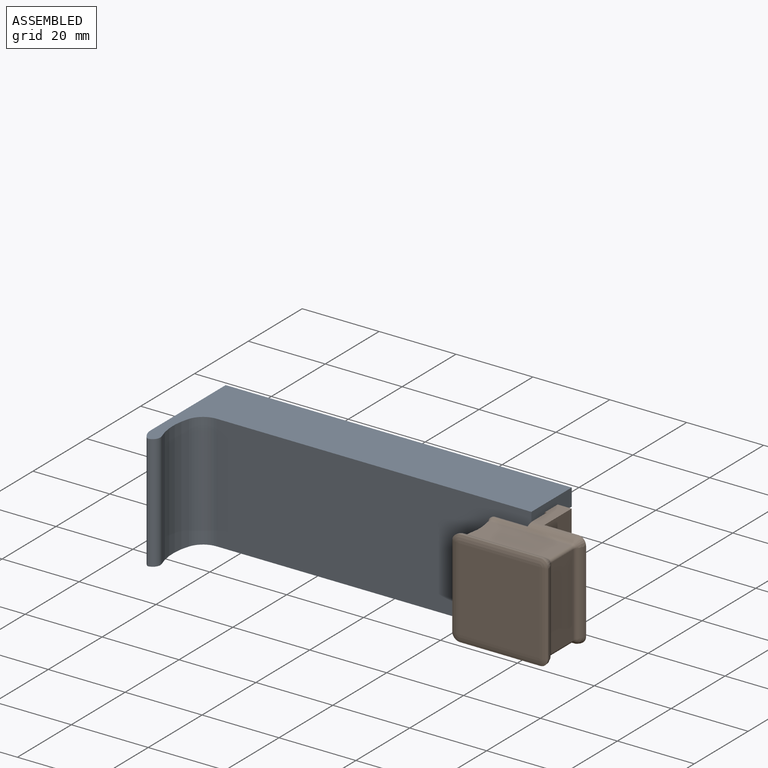
[diagram: assembled view]
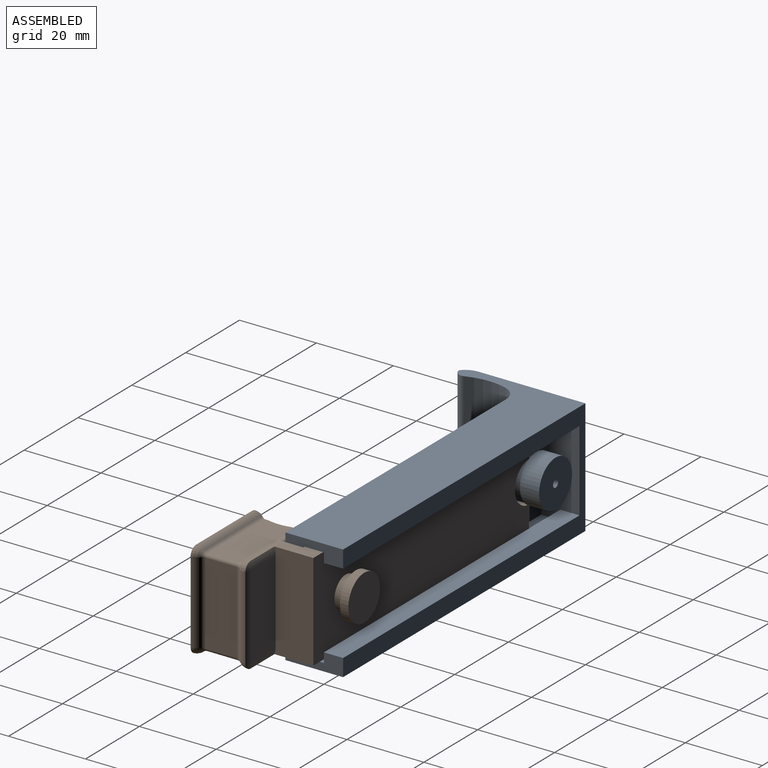
[diagram: assembled view, second angle]
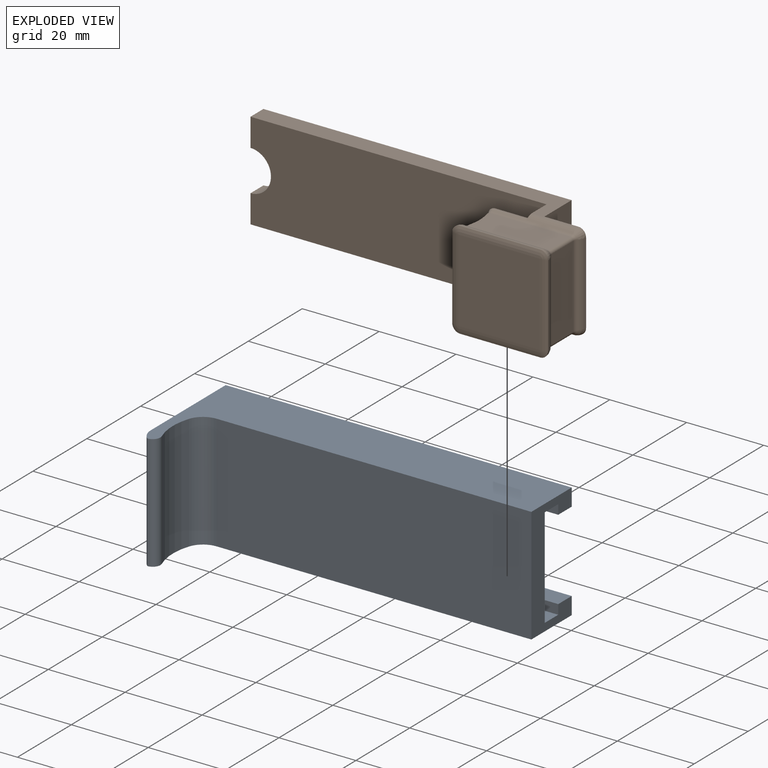
[diagram: exploded view]
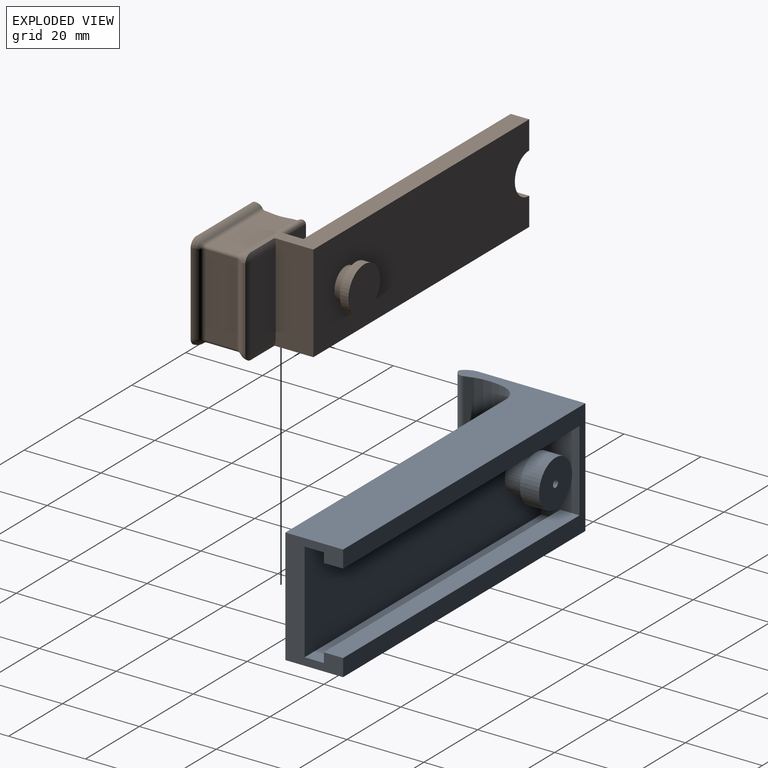
[diagram: exploded view, second angle]
ASSEMBLY  parts=2 mates=2
PART A: 24 faces, bbox 90x31.6x30 mm
  f0: plane 81.88x30mm, normal (0,-1,0), area 2456.5mm2, adj f1,f3,f4,f7
  f1: plane 90x31.6mm, normal (0,0,1), area 1403.4mm2, adj f0,f2,f4,f5,f6,f7,f22,f23
  f2: plane 30x27.79mm, normal (-1,0,0), area 833.8mm2, adj f1,f3,f5,f23
  f3: plane 90x31.6mm, normal (0,0,-1), area 1403.4mm2, adj f0,f2,f4,f5,f6,f7,f22,f23
  f4: plane 30x15mm, normal (1,0,0), area 215mm2, adj f0,f1,f3,f5,f8,f9,f10,f16
  f5: plane 90x30mm, normal (0,1,0), area 856.2mm2, adj f1,f2,f3,f4,f11,f17,f18
  f6: cylinder r=15.45mm len=30mm, axis (0,0,1), area 320.1mm2, adj f1,f3,f7,f22
  f7: cylinder r=5mm len=30mm, axis (0,0,1), area 187.4mm2, adj f0,f1,f3,f6
  f8: plane 87.8x5mm, normal (0,0,-1), area 439mm2, adj f4,f9,f11,f16
  f9: plane 87.8x26mm, normal (0,1,0), area 2217.9mm2, adj f4,f8,f10,f11,f12
  f10: plane 87.8x5mm, normal (0,0,1), area 439mm2, adj f4,f9,f11,f19
  f11: plane 26x10mm, normal (1,0,0), area 235mm2, adj f5,f8,f9,f10,f16,f17,f18,f19
  f12: cylinder r=4.55mm len=9.09mm, axis (0,-1,0), area 142.8mm2, adj f9,f14
  f13: plane 12.24x12.24mm, normal (0,1,0), area 114.8mm2, adj f15,f20
  f14: plane 12.24x12.24mm, normal (0,-1,0), area 52.8mm2, adj f12,f15
  f15: cylinder r=6.12mm len=12.24mm, axis (0,-1,0), area 192.3mm2, adj f13,f14
  f16: plane 87.8x2.5mm, normal (0,-1,0), area 219.5mm2, adj f4,f8,f11,f17
  f17: plane 87.8x5mm, normal (0,0,-1), area 439mm2, adj f4,f5,f11,f16
  f18: plane 87.8x5mm, normal (0,0,1), area 439mm2, adj f4,f5,f11,f19
  f19: plane 87.8x2.5mm, normal (0,-1,0), area 219.5mm2, adj f4,f10,f11,f18
  f20: cylinder r=0.96mm len=6.1mm, axis (0,1,0), area 36.6mm2, adj f13,f21
  f21: plane 1.91x1.91mm, normal (0,1,0), area 2.9mm2, adj f20
  f22: cylinder r=2mm len=30mm, axis (0,0,1), area 116.4mm2, adj f1,f3,f6,f23
  f23: cylinder r=5mm len=30mm, axis (0,0,-1), area 129.8mm2, adj f1,f2,f3,f22
PART B: 72 faces, bbox 91x29.5x25.4 mm
  f0: plane 20.85x8.02mm, normal (0,0,1), area 166.6mm2, adj f1,f13,f14,f20,f27,f70
  f1: cylinder r=0.8mm len=1.79mm, axis (0,1,0), area 0.5mm2, adj f0,f28,f70
  f2: cylinder r=0.8mm len=1.79mm, axis (0,1,0), area 0.5mm2, adj f16,f31,f70
  f3: plane 80.16x10.12mm, normal (0,0,1), area 401.6mm2, adj f5,f7,f8,f10,f11,f42
  f4: plane 80.16x10.12mm, normal (0,0,-1), area 401.6mm2, adj f6,f7,f8,f10,f11,f43
  f5: plane 7.32x4.8mm, normal (-1,0,0), area 35.1mm2, adj f3,f7,f8,f9
  f6: plane 7.32x4.8mm, normal (-1,0,0), area 35.1mm2, adj f4,f7,f8,f9
  f7: plane 77x25.3mm, normal (0,-1,0), area 1903.5mm2, adj f3,f4,f5,f6,f9,f10
  f8: plane 80.16x25.3mm, normal (0,1,0), area 1928mm2, adj f3,f4,f5,f6,f9,f11,f47
  f9: cylinder r=5.33mm len=10.66mm, axis (0,-1,0), area 80.4mm2, adj f5,f6,f7,f8
  f10: plane 25.3x7.51mm, normal (-1,0,0), area 151.5mm2, adj f3,f4,f7,f20,f26,f42,f43,f59
  f11: plane 25.3x10.12mm, normal (1,0,0), area 248.3mm2, adj f3,f4,f8,f12,f65,f69
  f12: plane 21.79x9.09mm, normal (0,1,0), area 197.9mm2, adj f11,f65,f66,f67,f68,f69
  f13: cylinder r=0.8mm len=8.02mm, axis (0,1,0), area 10.1mm2, adj f0,f18,f22,f29
  f14: cylinder r=0.8mm len=1.93mm, axis (0,1,0), area 0.6mm2, adj f0,f21,f70
  f15: cylinder r=0.8mm len=1.93mm, axis (0,1,0), area 0.6mm2, adj f16,f24,f70
  f16: plane 20.85x8.02mm, normal (0,0,-1), area 166.6mm2, adj f2,f15,f17,f26,f33,f70
  f17: cylinder r=0.8mm len=8.02mm, axis (0,1,0), area 10.1mm2, adj f16,f18,f25,f32
  f18: plane 21.3x8.02mm, normal (1,0,0), area 170.9mm2, adj f13,f17,f23,f30
  f19: plane 21.48x21.02mm, normal (0,-1,0), area 451.4mm2, adj f51,f52,f53,f54,f55,f56,f57,f58
  f20: cylinder r=1.52mm len=20.85mm, axis (-1,0,0), area 21.9mm2, adj f0,f10,f21,f22,f42,f60
  f21: torus R=2.32mm, axis (0,1,0), area 0.8mm2, adj f14,f20,f61,f70
  f22: torus R=2.32mm, axis (0,1,0), area 1.7mm2, adj f13,f20,f23,f44
  f23: cylinder r=1.52mm len=21.3mm, axis (0,0,1), area 24.1mm2, adj f18,f22,f25,f46
  f24: torus R=2.32mm, axis (0,1,0), area 0.8mm2, adj f15,f26,f64,f70
  f25: torus R=2.32mm, axis (0,1,0), area 1.7mm2, adj f17,f23,f26,f45
  f26: cylinder r=1.52mm len=20.85mm, axis (-1,0,0), area 21.9mm2, adj f10,f16,f24,f25,f43,f62
  f27: cylinder r=1.52mm len=20.85mm, axis (1,0,0), area 23.9mm2, adj f0,f28,f29,f38
  f28: torus R=2.32mm, axis (0,-1,0), area 0.9mm2, adj f1,f27,f36,f70
  f29: torus R=2.32mm, axis (0,-1,0), area 1.7mm2, adj f13,f27,f30,f40
  f30: cylinder r=1.52mm len=21.3mm, axis (0,0,-1), area 24.5mm2, adj f18,f29,f32,f41
  f31: torus R=2.32mm, axis (0,-1,0), area 0.9mm2, adj f2,f33,f35,f70
  f32: torus R=2.32mm, axis (0,-1,0), area 1.7mm2, adj f17,f30,f33,f39
  f33: cylinder r=1.52mm len=20.85mm, axis (-1,0,0), area 23.9mm2, adj f16,f31,f32,f37
  f34: cylinder r=3mm len=21.3mm, axis (0,0,1), area 6mm2, adj f35,f36,f52,f70
  f35: revolved ~2.06x2.03mm, area 4.3mm2, adj f31,f34,f37,f54,f70
  f36: revolved ~2.06x2.03mm, area 4.7mm2, adj f28,f34,f38,f51,f70,f71
  f37: cylinder r=3mm len=20.85mm, axis (-1,0,0), area 47.2mm2, adj f33,f35,f39,f56
  f38: cylinder r=3mm len=20.85mm, axis (1,0,0), area 47.2mm2, adj f27,f36,f40,f53
  f39: revolved ~2.06x2.03mm, area 6.2mm2, adj f32,f37,f41,f58
  f40: revolved ~2.06x2.03mm, area 6.2mm2, adj f29,f38,f41,f55
  f41: cylinder r=3mm len=21.3mm, axis (0,0,-1), area 48.3mm2, adj f30,f39,f40,f57
  f42: cylinder r=3mm len=12mm, axis (-1,0,0), area 26.9mm2, adj f3,f10,f20,f44,f69
  f43: cylinder r=3mm len=12mm, axis (-1,0,0), area 26.9mm2, adj f4,f10,f26,f45,f65
  f44: revolved ~2.04x2mm, area 6.1mm2, adj f22,f42,f46,f68
  f45: revolved ~2.04x2mm, area 6.1mm2, adj f25,f43,f46,f66
  f46: cylinder r=3mm len=21.3mm, axis (0,0,1), area 47.7mm2, adj f23,f44,f45,f67
  f47: cylinder r=4.2mm len=8.4mm, axis (0,-1,0), area 68.6mm2, adj f8,f50
  f48: cylinder r=5.88mm len=11.75mm, axis (0,-1,0), area 81.2mm2, adj f49,f50
  f49: plane 11.75x11.75mm, normal (0,1,0), area 108.5mm2, adj f48
  f50: plane 11.75x11.75mm, normal (0,-1,0), area 53mm2, adj f47,f48
  f51: torus R=0.09mm, axis (0,1,0), area 3.4mm2, adj f19,f36,f52,f53
  f52: cylinder r=5mm len=21.3mm, axis (0,0,1), area 42.5mm2, adj f19,f34,f51,f54
  f53: cylinder r=5mm len=20.85mm, axis (1,0,0), area 41.6mm2, adj f19,f38,f51,f55
  f54: torus R=0.09mm, axis (0,1,0), area 3.4mm2, adj f19,f35,f52,f56
  f55: torus R=0.09mm, axis (0,1,0), area 3.4mm2, adj f19,f40,f53,f57
  f56: cylinder r=5mm len=20.85mm, axis (-1,0,0), area 41.6mm2, adj f19,f37,f54,f58
  f57: cylinder r=5mm len=21.3mm, axis (0,0,-1), area 42.5mm2, adj f19,f41,f55,f58
  f58: torus R=0.09mm, axis (0,1,0), area 3.4mm2, adj f19,f39,f56,f57
  f59: plane 21.83x9.11mm, normal (0,1,0), area 198.8mm2, adj f10,f60,f61,f62,f63,f64
  f60: cylinder r=1mm len=8.84mm, axis (-1,0,0), area 19.4mm2, adj f10,f20,f59,f61
  f61: torus R=0.27mm, axis (0,1,0), area 3mm2, adj f21,f59,f60,f63,f70
  f62: cylinder r=1mm len=8.84mm, axis (-1,0,0), area 19.4mm2, adj f10,f26,f59,f64
  f63: cylinder r=1mm len=21.3mm, axis (0,0,1), area 32.3mm2, adj f59,f61,f64,f70
  f64: torus R=0.27mm, axis (0,1,0), area 3mm2, adj f24,f59,f62,f63,f70
  f65: cylinder r=5mm len=8.84mm, axis (-1,0,0), area 15.9mm2, adj f11,f12,f43,f66
  f66: torus R=0.24mm, axis (0,1,0), area 3.2mm2, adj f12,f45,f65,f67
  f67: cylinder r=5mm len=21.3mm, axis (0,0,-1), area 38.2mm2, adj f12,f46,f66,f68
  f68: torus R=0.24mm, axis (0,1,0), area 3.2mm2, adj f12,f44,f67,f69
  f69: cylinder r=5mm len=8.84mm, axis (1,0,0), area 15.9mm2, adj f11,f12,f42,f68
  f70: cylinder r=11.4mm len=23.19mm, axis (0,0,1), area 297.9mm2, adj f0,f1,f2,f14,f15,f16,f21,f24
  f71: plane 1.44x0.84mm, normal (0,0,-1), area 0.2mm2, adj f36,f70
PLACE A t=(41.78,23.41,-7.96)mm fixed
PLACE B t=(59.4,18.21,-21.89)mm
MATE planar B.f3 <-> A.f8  axis (0,0,1) through (101.36,18.21,-6.06)mm
MATE planar A.f9 <-> B.f7  axis (0,1,0) through (54.86,13.41,-19.07)mm
